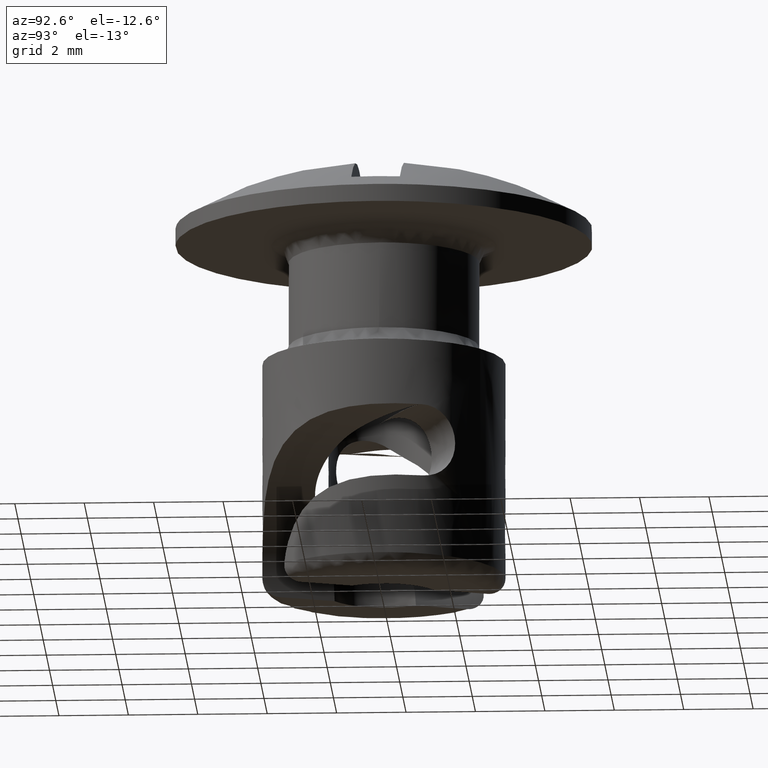
[diagram: clean part render]
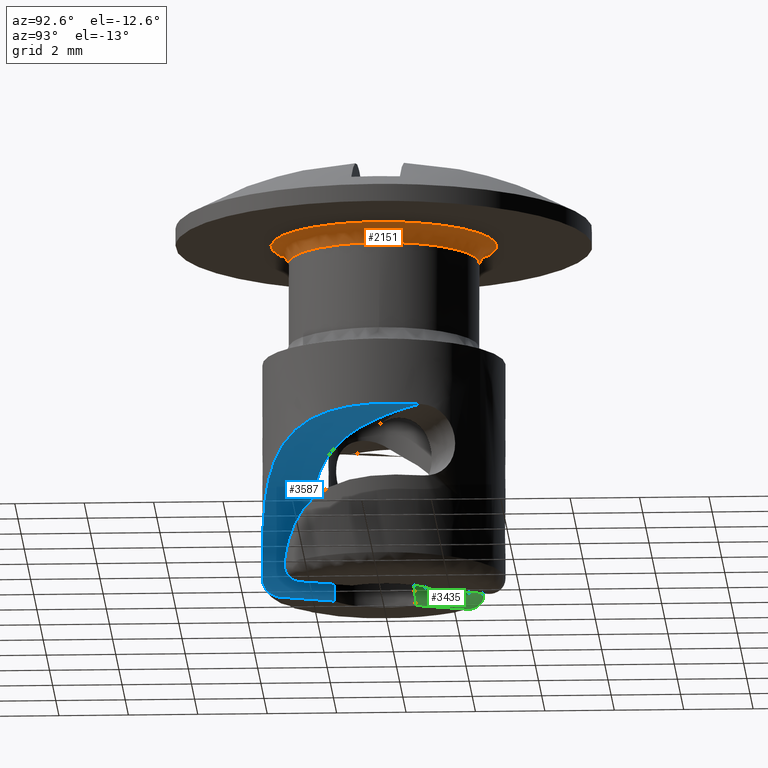
[diagram: same view with three faces highlighted in distinct colors, each labeled with its STEP entity id]
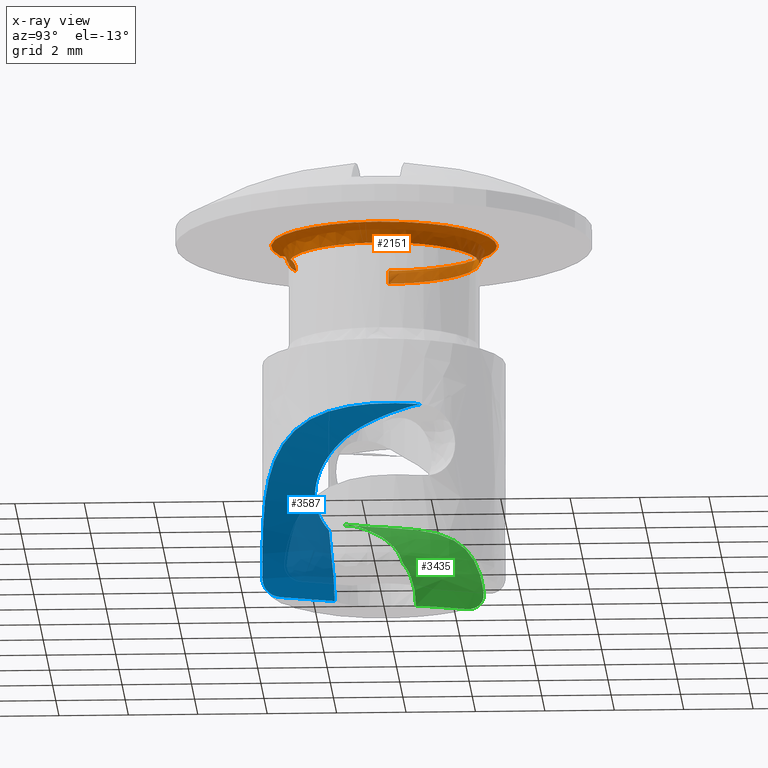
[diagram: x-ray of the same camera — body ghosted, the three highlighted faces saturated]
A machine part, auxiliary view with three faces highlighted in distinct colors.
The next image is the same camera in x-ray (body ghosted, the three faces saturated) — at least one of them is partly hidden behind the body in this view.
Their STEP definitions:

[orange] entity #2151 — the highlighted face is a freeform B-spline surface patch.
#547=CARTESIAN_POINT('',(1.517825623290041,-2.293186729702250,-0.499999999999945));
#548=VERTEX_POINT('',#547);
#554=CARTESIAN_POINT('',(-0.971580408316190,-2.572650677837188,-0.499999999988424));
#555=VERTEX_POINT('',#554);
#556=CARTESIAN_POINT('',(1.517825623290041,-2.293186729702250,-0.499999999999945));
#557=CARTESIAN_POINT('',(0.827655347255862,-2.750000000000000,-0.499999999999945));
#558=CARTESIAN_POINT('',(0.0,-2.750000000000000,-0.499999999999945));
#559=CARTESIAN_POINT('',(-0.501976606129240,-2.750000000000000,-0.499999999999945));
#560=CARTESIAN_POINT('',(-0.971580408316190,-2.572650677837188,-0.499999999988424));
#568=(BOUNDED_CURVE()B_SPLINE_CURVE(2,(#556,#557,#558,#559,#560),.UNSPECIFIED.,.F.,.U.)B_SPLINE_CURVE_WITH_KNOTS((3,2,3),(0.155387387567026,0.250000000000000,0.310000000000112),.UNSPECIFIED.)CURVE()GEOMETRIC_REPRESENTATION_ITEM()RATIONAL_B_SPLINE_CURVE((0.862207971158005,0.889154429616626,1.0,0.929705627484640,0.893152553776716))REPRESENTATION_ITEM(''));
#569=EDGE_CURVE('',#548,#555,#568,.T.);
#571=CARTESIAN_POINT('',(-2.749999999999999,1.083418E-016,-0.499999999987723));
#572=VERTEX_POINT('',#571);
#586=CARTESIAN_POINT('',(-1.384189125902121,2.376240826123024,-0.499999999998284));
#587=VERTEX_POINT('',#586);
#588=CARTESIAN_POINT('',(-2.749999999999999,1.083418E-016,-0.499999999987723));
#589=CARTESIAN_POINT('',(-2.750000000000000,1.580639877502741,-0.499999999994748));
#590=CARTESIAN_POINT('',(-1.384189125902121,2.376240826123024,-0.499999999998284));
#598=(BOUNDED_CURVE()B_SPLINE_CURVE(2,(#588,#589,#590),.UNSPECIFIED.,.F.,.U.)B_SPLINE_CURVE_WITH_KNOTS((3,3),(0.500000000000000,0.664136898729710),.UNSPECIFIED.)CURVE()GEOMETRIC_REPRESENTATION_ITEM()RATIONAL_B_SPLINE_CURVE((1.0,0.807701661619990,0.867909346380550))REPRESENTATION_ITEM(''));
#599=EDGE_CURVE('',#572,#587,#598,.T.);
#645=CARTESIAN_POINT('',(2.750000000000000,0.0,-0.499999999999945));
#646=VERTEX_POINT('',#645);
#647=CARTESIAN_POINT('',(-1.384189125902121,2.376240826123024,-0.499999999998284));
#648=CARTESIAN_POINT('',(-0.742555471668955,2.750000000000000,-0.499999999999945));
#649=CARTESIAN_POINT('',(0.0,2.750000000000000,-0.499999999999945));
#650=CARTESIAN_POINT('',(2.750000000000000,2.750000000000000,-0.499999999999945));
#651=CARTESIAN_POINT('',(2.750000000000000,0.0,-0.499999999999945));
#659=(BOUNDED_CURVE()B_SPLINE_CURVE(2,(#647,#648,#649,#650,#651),.UNSPECIFIED.,.F.,.U.)B_SPLINE_CURVE_WITH_KNOTS((3,2,3),(0.664136898729711,0.750000000000000,1.0),.UNSPECIFIED.)CURVE()GEOMETRIC_REPRESENTATION_ITEM()RATIONAL_B_SPLINE_CURVE((0.867909346380550,0.899405119566558,1.0,0.707106781186548,1.0))REPRESENTATION_ITEM(''));
#660=EDGE_CURVE('',#587,#646,#659,.T.);
#662=CARTESIAN_POINT('',(2.750000000000000,0.0,-0.499999999999945));
#663=CARTESIAN_POINT('',(2.750000000000001,-1.477629140297486,-0.499999999999945));
#664=CARTESIAN_POINT('',(1.517825623290041,-2.293186729702250,-0.499999999999945));
#672=(BOUNDED_CURVE()B_SPLINE_CURVE(2,(#662,#663,#664),.UNSPECIFIED.,.F.,.U.)B_SPLINE_CURVE_WITH_KNOTS((3,3),(0.0,0.155387387567026),.UNSPECIFIED.)CURVE()GEOMETRIC_REPRESENTATION_ITEM()RATIONAL_B_SPLINE_CURVE((1.0,0.817952351569921,0.862207971158005))REPRESENTATION_ITEM(''));
#673=EDGE_CURVE('',#646,#548,#672,.T.);
#2048=CARTESIAN_POINT('',(-1.160482248945217,-3.072844428331191,-0.001203826731089));
#2049=CARTESIAN_POINT('',(-0.599574606292951,-3.284675315893946,-0.001203826731089));
#2050=CARTESIAN_POINT('',(-4.022434E-016,-3.284675315893946,-0.001203826731089));
#2051=CARTESIAN_POINT('',(3.284675315893945,-3.284675315893947,-0.001203826731089));
#2052=CARTESIAN_POINT('',(3.284675315893946,-6.033651E-016,-0.001203826731089));
#2053=CARTESIAN_POINT('',(3.284675315893947,3.284675315893945,-0.001203826731089));
#2054=CARTESIAN_POINT('',(8.044869E-016,3.284675315893946,-0.001203826731089));
#2055=CARTESIAN_POINT('',(-3.284675315893945,3.284675315893947,-0.001203826731089));
#2056=CARTESIAN_POINT('',(-3.284675315893946,1.005609E-015,-0.001203826731089));
#2057=CARTESIAN_POINT('',(-0.957847686376818,-2.536287762219682,0.038667875892163));
#2058=CARTESIAN_POINT('',(-0.494881459815510,-2.711130355236122,0.038667875892163));
#2059=CARTESIAN_POINT('',(-3.320067E-016,-2.711130355236123,0.038667875892163));
#2060=CARTESIAN_POINT('',(2.711130355236122,-2.711130355236122,0.038667875892163));
#2061=CARTESIAN_POINT('',(2.711130355236123,-4.980101E-016,0.038667875892163));
#2062=CARTESIAN_POINT('',(2.711130355236122,2.711130355236122,0.038667875892163));
#2063=CARTESIAN_POINT('',(6.640135E-016,2.711130355236123,0.038667875892163));
#2064=CARTESIAN_POINT('',(-2.711130355236122,2.711130355236122,0.038667875892163));
#2065=CARTESIAN_POINT('',(-2.711130355236123,8.300169E-016,0.038667875892163));
#2066=CARTESIAN_POINT('',(-0.972010322969988,-2.573789050141456,-0.534862112595797));
#2067=CARTESIAN_POINT('',(-0.502198725777258,-2.751216847612758,-0.534862112595797));
#2068=CARTESIAN_POINT('',(-3.369158E-016,-2.751216847612757,-0.534862112595797));
#2069=CARTESIAN_POINT('',(2.751216847612756,-2.751216847612757,-0.534862112595797));
#2070=CARTESIAN_POINT('',(2.751216847612757,-5.053736E-016,-0.534862112595797));
#2071=CARTESIAN_POINT('',(2.751216847612757,2.751216847612756,-0.534862112595797));
#2072=CARTESIAN_POINT('',(6.738315E-016,2.751216847612757,-0.534862112595797));
#2073=CARTESIAN_POINT('',(-2.751216847612756,2.751216847612757,-0.534862112595797));
#2074=CARTESIAN_POINT('',(-2.751216847612757,8.422894E-016,-0.534862112595797));
#2082=(BOUNDED_SURFACE()B_SPLINE_SURFACE(2,2,((#2048,#2057,#2066),(#2049,#2058,#2067),(#2050,#2059,#2068),(#2051,#2060,#2069),(#2052,#2061,#2070),(#2053,#2062,#2071),(#2054,#2063,#2072),(#2055,#2064,#2073),(#2056,#2065,#2074)),.UNSPECIFIED.,.F.,.F.,.U.)B_SPLINE_SURFACE_WITH_KNOTS((3,2,2,2,3),(3,3),(0.0,1.306134781281988,6.748363036623597,12.190591291965211,17.632819547306820),(0.0,0.911185222123488),.UNSPECIFIED.)GEOMETRIC_REPRESENTATION_ITEM()RATIONAL_B_SPLINE_SURFACE(((0.812829742495508,0.531919635418494,0.808327346992212),(0.846095532716660,0.553688926182902,0.841408872617134),(0.910068206218876,0.595552946883686,0.905027191126598),(0.643515399959645,0.421119527297086,0.639950864003831),(0.910068206218876,0.595552946883686,0.905027191126598),(0.643515399959645,0.421119527297086,0.639950864003831),(0.910068206218876,0.595552946883686,0.905027191126598),(0.643515399959645,0.421119527297086,0.639950864003831),(0.910068206218876,0.595552946883686,0.905027191126598)))REPRESENTATION_ITEM('')SURFACE());
#2083=ORIENTED_EDGE('',*,*,#673,.F.);
#2084=ORIENTED_EDGE('',*,*,#660,.F.);
#2085=ORIENTED_EDGE('',*,*,#599,.F.);
#2086=CARTESIAN_POINT('',(-3.249999999997137,8.589394E-018,1.369246E-014));
#2087=VERTEX_POINT('',#2086);
#2088=CARTESIAN_POINT('',(-3.249999999997137,8.589394E-018,1.369246E-014));
#2089=CARTESIAN_POINT('',(-2.750000000024443,1.771780E-016,-1.139426E-011));
#2090=CARTESIAN_POINT('',(-2.749999999999999,1.083418E-016,-0.499999999987723));
#2098=(BOUNDED_CURVE()B_SPLINE_CURVE(2,(#2088,#2089,#2090),.UNSPECIFIED.,.F.,.U.)B_SPLINE_CURVE_WITH_KNOTS((3,3),(-1.726807299490202,-0.285995334094694),.UNSPECIFIED.)CURVE()GEOMETRIC_REPRESENTATION_ITEM()RATIONAL_B_SPLINE_CURVE((0.882788776210587,0.622603437752404,0.878205639036842))REPRESENTATION_ITEM(''));
#2099=EDGE_CURVE('',#2087,#572,#2098,.T.);
#2100=ORIENTED_EDGE('',*,*,#2099,.F.);
#2101=CARTESIAN_POINT('',(3.250000000000000,0.0,0.0));
#2102=VERTEX_POINT('',#2101);
#2103=CARTESIAN_POINT('',(3.250000000000000,0.0,0.0));
#2104=CARTESIAN_POINT('',(3.250000000000000,3.250000000000000,0.0));
#2105=CARTESIAN_POINT('',(0.0,3.250000000000000,0.0));
#2106=CARTESIAN_POINT('',(-3.250000000000000,3.250000000000000,0.0));
#2107=CARTESIAN_POINT('',(-3.249999999997137,8.589394E-018,1.369246E-014));
#2115=(BOUNDED_CURVE()B_SPLINE_CURVE(2,(#2103,#2104,#2105,#2106,#2107),.UNSPECIFIED.,.F.,.U.)B_SPLINE_CURVE_WITH_KNOTS((3,2,3),(0.0,0.250000000000000,0.500000000000000),.UNSPECIFIED.)CURVE()GEOMETRIC_REPRESENTATION_ITEM()RATIONAL_B_SPLINE_CURVE((1.0,0.707106781186547,1.0,0.707106781186547,1.0))REPRESENTATION_ITEM(''));
#2116=EDGE_CURVE('',#2102,#2087,#2115,.T.);
#2117=ORIENTED_EDGE('',*,*,#2116,.F.);
#2118=CARTESIAN_POINT('',(-1.148231391575787,-3.040405346307002,2.737838E-014));
#2119=VERTEX_POINT('',#2118);
#2120=CARTESIAN_POINT('',(-1.148231391575787,-3.040405346307002,2.737838E-014));
#2121=CARTESIAN_POINT('',(-0.593245079985838,-3.250000000000000,0.0));
#2122=CARTESIAN_POINT('',(0.0,-3.250000000000000,0.0));
#2123=CARTESIAN_POINT('',(3.250000000000000,-3.250000000000000,0.0));
#2124=CARTESIAN_POINT('',(3.250000000000000,0.0,0.0));
#2132=(BOUNDED_CURVE()B_SPLINE_CURVE(2,(#2120,#2121,#2122,#2123,#2124),.UNSPECIFIED.,.F.,.U.)B_SPLINE_CURVE_WITH_KNOTS((3,2,3),(0.689999999998485,0.750000000000000,1.0),.UNSPECIFIED.)CURVE()GEOMETRIC_REPRESENTATION_ITEM()RATIONAL_B_SPLINE_CURVE((0.893152553775006,0.929705627482996,1.0,0.707106781186547,1.0))REPRESENTATION_ITEM(''));
#2133=EDGE_CURVE('',#2119,#2102,#2132,.T.);
#2134=ORIENTED_EDGE('',*,*,#2133,.F.);
#2135=CARTESIAN_POINT('',(-1.148231391575787,-3.040405346307002,2.737838E-014));
#2136=CARTESIAN_POINT('',(-0.971580408323416,-2.572650677859089,-4.761676E-010));
#2137=CARTESIAN_POINT('',(-0.971580408316190,-2.572650677837187,-0.499999999988424));
#2145=(BOUNDED_CURVE()B_SPLINE_CURVE(2,(#2135,#2136,#2137),.UNSPECIFIED.,.F.,.U.)B_SPLINE_CURVE_WITH_KNOTS((3,3),(-1.726807298540704,-0.285995334091847),.UNSPECIFIED.)CURVE()GEOMETRIC_REPRESENTATION_ITEM()RATIONAL_B_SPLINE_CURVE((0.788465049611743,0.556079850568793,0.784371609247891))REPRESENTATION_ITEM(''));
#2146=EDGE_CURVE('',#2119,#555,#2145,.T.);
#2147=ORIENTED_EDGE('',*,*,#2146,.T.);
#2148=ORIENTED_EDGE('',*,*,#569,.F.);
#2149=EDGE_LOOP('',(#2083,#2084,#2085,#2100,#2117,#2134,#2147,#2148));
#2150=FACE_OUTER_BOUND('',#2149,.T.);
#2151=ADVANCED_FACE('',(#2150),#2082,.F.);

[blue] entity #3587 — the highlighted face is a freeform B-spline surface patch.
#88=CARTESIAN_POINT('',(0.137757022448153,-3.497287949649875,-9.799999999999999));
#89=VERTEX_POINT('',#88);
#103=CARTESIAN_POINT('',(3.270921944318185,1.243027475562352,-5.400044604692890));
#104=VERTEX_POINT('',#103);
#105=CARTESIAN_POINT('',(3.270921944318185,1.243027475562352,-5.400044604692890));
#106=CARTESIAN_POINT('',(3.337428524366804,1.067785125365376,-5.400081035622704));
#107=CARTESIAN_POINT('',(3.389077508768006,0.889546251571947,-5.400817230837527));
#108=CARTESIAN_POINT('',(3.463836248487102,0.527322468759356,-5.404459444765637));
#109=CARTESIAN_POINT('',(3.486944652731964,0.343337197643135,-5.407358008335470));
#110=CARTESIAN_POINT('',(3.497343891202687,0.109651506955560,-5.413887701239980));
#111=CARTESIAN_POINT('',(3.498487321264518,0.062751030427808,-5.415344049122055));
#112=CARTESIAN_POINT('',(3.498896758835796,-0.030558936478385,-5.418581372367856));
#113=CARTESIAN_POINT('',(3.498168693204514,-0.077075848872448,-5.420365162795740));
#114=CARTESIAN_POINT('',(3.493230484071851,-0.216212885647622,-5.426287710037986));
#115=CARTESIAN_POINT('',(3.486270303458540,-0.308420046391675,-5.430994888138319));
#116=CARTESIAN_POINT('',(3.454588059182040,-0.583365650327476,-5.448093109595621));
#117=CARTESIAN_POINT('',(3.419124156154236,-0.764440744708545,-5.463399531518586));
#118=CARTESIAN_POINT('',(3.356613484029639,-0.987748349892645,-5.490521972158057));
#119=CARTESIAN_POINT('',(3.343159768619089,-1.032369789805334,-5.496367366326092));
#120=CARTESIAN_POINT('',(3.314607546158963,-1.120666867912481,-5.508874455932501));
#121=CARTESIAN_POINT('',(3.269355497882446,-1.251612368960199,-5.528840667469681));
#122=CARTESIAN_POINT('',(3.217066048576097,-1.378103675207626,-5.552705097294906));
#123=CARTESIAN_POINT('',(3.103592574227444,-1.625186658399358,-5.606450887842163));
#124=CARTESIAN_POINT('',(3.016112354655570,-1.782066931734708,-5.650261683792408));
#125=CARTESIAN_POINT('',(2.868438751313074,-2.005304417032259,-5.731830710992950));
#126=CARTESIAN_POINT('',(2.816266059322724,-2.077897415131813,-5.761805116992512));
#127=CARTESIAN_POINT('',(2.708973710333107,-2.216025305863624,-5.826346215079234));
#128=CARTESIAN_POINT('',(2.653629544564001,-2.281939777183316,-5.861028155068783));
#129=CARTESIAN_POINT('',(2.483284798684816,-2.470695984313708,-5.972736617806401));
#130=CARTESIAN_POINT('',(2.363982542788617,-2.584571174964870,-6.057409132917961));
#131=CARTESIAN_POINT('',(2.209966372633149,-2.713079800879704,-6.177612147125156));
#132=CARTESIAN_POINT('',(2.178869134984441,-2.738122721692637,-6.202413966190091));
#133=CARTESIAN_POINT('',(2.116787784382817,-2.786429290439684,-6.253046256317140));
#134=CARTESIAN_POINT('',(2.023659820090877,-2.856373356785835,-6.330669665347478));
#135=CARTESIAN_POINT('',(1.930758473270878,-2.919160838695215,-6.413316105045489));
#136=CARTESIAN_POINT('',(1.745854746306177,-3.036091316036991,-6.585339498652041));
#137=CARTESIAN_POINT('',(1.623726894034127,-3.102572148014052,-6.709044526735073));
#138=CARTESIAN_POINT('',(1.385070576196898,-3.216327764734752,-6.974643649284850));
#139=CARTESIAN_POINT('',(1.271098997556564,-3.262433903975237,-7.113672311535568));
#140=CARTESIAN_POINT('',(1.055195950018211,-3.338621666939527,-7.403831943829860));
#141=CARTESIAN_POINT('',(0.953256632940966,-3.368675382879683,-7.554963920986750));
#142=CARTESIAN_POINT('',(0.810563228651727,-3.404831464730671,-7.790846652546750));
#143=CARTESIAN_POINT('',(0.764704169255701,-3.415388297550936,-7.871008787853918));
#144=CARTESIAN_POINT('',(0.676639781496962,-3.433960333682570,-8.034467267459016));
#145=CARTESIAN_POINT('',(0.634502596955019,-3.441956693920404,-8.117672769338926));
#146=CARTESIAN_POINT('',(0.515276580374612,-3.462572881493416,-8.369111536494753));
#147=CARTESIAN_POINT('',(0.444836072192219,-3.471963906991542,-8.540096508131645));
#148=CARTESIAN_POINT('',(0.322863523102436,-3.485484875808227,-8.888919231465820));
#149=CARTESIAN_POINT('',(0.271330521898766,-3.489610233367626,-9.066756850704293));
#150=CARTESIAN_POINT('',(0.209273003390313,-3.493736914069842,-9.338940440315827));
#151=CARTESIAN_POINT('',(0.191099198159951,-3.494763710180998,-9.430801697463467));
#152=CARTESIAN_POINT('',(0.160292957893944,-3.496337413987351,-9.615014204358049));
#153=CARTESIAN_POINT('',(0.147640504235540,-3.496886741682631,-9.707377773324200));
#154=CARTESIAN_POINT('',(0.137757022448153,-3.497287949649875,-9.799999999999999));
#155=B_SPLINE_CURVE_WITH_KNOTS('',3,(#105,#106,#107,#108,#109,#110,#111,#112,#113,#114,#115,#116,#117,#118,#119,#120,#121,#122,#123,#124,#125,#126,#127,#128,#129,#130,#131,#132,#133,#134,#135,#136,#137,#138,#139,#140,#141,#142,#143,#144,#145,#146,#147,#148,#149,#150,#151,#152,#153,#154),.UNSPECIFIED.,.F.,.U.,(4,2,2,2,2,2,2,2,1,2,2,2,2,2,2,1,2,2,2,2,2,2,2,2,2,4),(0.0,0.062500000000000,0.125000000000000,0.140625000000000,0.156249999999999,0.187499999999999,0.249999999999999,0.265624999999999,0.281249999999999,0.312499999999999,0.374999999999999,0.406249999999999,0.437499999999999,0.499999999999999,0.515624999999999,0.531249999999999,0.562499999999999,0.624999999999999,0.687499999999999,0.749999999999999,0.781249999999999,0.812499999999999,0.874999999999999,0.937500000000000,0.968750000000000,1.0),.UNSPECIFIED.);
#156=EDGE_CURVE('',#104,#89,#155,.T.);
#1724=CARTESIAN_POINT('',(-0.179083579843718,-1.589946247968895,-8.325410358870839));
#1725=VERTEX_POINT('',#1724);
#1739=CARTESIAN_POINT('',(-0.674474964545786,-1.450890596220460,-10.300003499999900));
#1740=VERTEX_POINT('',#1739);
#1741=CARTESIAN_POINT('',(-0.674474964545786,-1.450890596220460,-10.300003499999900));
#1742=CARTESIAN_POINT('',(-0.674770387723053,-1.450753262956460,-10.126536362449009));
#1743=CARTESIAN_POINT('',(-0.663024219073830,-1.456369396511732,-9.955292259845601));
#1744=CARTESIAN_POINT('',(-0.617647508472461,-1.476185791242738,-9.616730463390804));
#1745=CARTESIAN_POINT('',(-0.584048927814610,-1.490305285289619,-9.449402890358989));
#1746=CARTESIAN_POINT('',(-0.519000840261962,-1.513660753870350,-9.200823128795918));
#1747=CARTESIAN_POINT('',(-0.494805480543778,-1.521816999136457,-9.118159823569746));
#1748=CARTESIAN_POINT('',(-0.442104854921236,-1.537954075952820,-8.954605728653636));
#1749=CARTESIAN_POINT('',(-0.413658834899454,-1.545918713889040,-8.873847724270970));
#1750=CARTESIAN_POINT('',(-0.322557715240966,-1.568397181863725,-8.634334019467927));
#1751=CARTESIAN_POINT('',(-0.254170569411902,-1.581488825988281,-8.478323239347594));
#1752=CARTESIAN_POINT('',(-0.179083579843718,-1.589946247968895,-8.325410358870839));
#1753=B_SPLINE_CURVE_WITH_KNOTS('',3,(#1741,#1742,#1743,#1744,#1745,#1746,#1747,#1748,#1749,#1750,#1751,#1752),.UNSPECIFIED.,.F.,.U.,(4,2,2,2,2,4),(0.0,0.250000000000000,0.500000000000000,0.625000000000000,0.750000000000000,1.0),.UNSPECIFIED.);
#1754=EDGE_CURVE('',#1740,#1725,#1753,.T.);
#2539=CARTESIAN_POINT('',(-0.179083579843718,-1.589946247968895,-8.325410358870839));
#2540=CARTESIAN_POINT('',(-0.144642412572911,-1.628435356946048,-8.284379672191578));
#2541=CARTESIAN_POINT('',(-0.076717841908854,-1.704343243051035,-8.203459308638669));
#2542=CARTESIAN_POINT('',(0.028769617276927,-1.796625491289338,-8.070165866816813));
#2543=CARTESIAN_POINT('',(0.135448860005197,-1.869875517568198,-7.931334618524419));
#2544=CARTESIAN_POINT('',(0.244291493524404,-1.922534277500573,-7.786601235937954));
#2545=CARTESIAN_POINT('',(0.355855240485262,-1.954640576618800,-7.636922602072037));
#2546=CARTESIAN_POINT('',(0.470811513596490,-1.965851519060180,-7.483017876179785));
#2547=CARTESIAN_POINT('',(0.589804249761189,-1.955965442336128,-7.325767874812152));
#2548=CARTESIAN_POINT('',(0.713485786887047,-1.924775497343042,-7.166099383740910));
#2549=CARTESIAN_POINT('',(0.842483755112992,-1.872083363743707,-7.005024104885834));
#2550=CARTESIAN_POINT('',(0.977443739221252,-1.797741490745635,-6.843616731306216));
#2551=CARTESIAN_POINT('',(1.212475904306101,-1.637589632415540,-6.576755581923483));
#2552=CARTESIAN_POINT('',(1.553123797832915,-1.331231288134770,-6.237050797339451));
#2553=CARTESIAN_POINT('',(1.931647946647941,-0.888363621665048,-5.937746061979920));
#2554=CARTESIAN_POINT('',(2.277704833955764,-0.347986025154689,-5.705925021501974));
#2555=CARTESIAN_POINT('',(2.550619082846958,0.100736993673065,-5.570596775057260));
#2556=CARTESIAN_POINT('',(2.797266649058546,0.495386997486872,-5.486677252694931));
#2557=CARTESIAN_POINT('',(2.926951585970761,0.690935152990403,-5.453593222472556));
#2558=CARTESIAN_POINT('',(3.025438444368592,0.832536862045166,-5.433597290171034));
#2559=CARTESIAN_POINT('',(3.093676683228233,0.928628533185757,-5.421884965610621));
#2560=CARTESIAN_POINT('',(3.159973885887538,1.024016313025695,-5.412540277235172));
#2561=CARTESIAN_POINT('',(3.210724903286257,1.101791849206664,-5.406560135518642));
#2562=CARTESIAN_POINT('',(3.244762282857396,1.163167065961199,-5.402978834991891));
#2563=CARTESIAN_POINT('',(3.268074806775244,1.207640446990309,-5.400837747901147));
#2564=CARTESIAN_POINT('',(3.270154911812794,1.233494040392967,-5.400258281276119));
#2565=CARTESIAN_POINT('',(3.270921944318185,1.243027475562352,-5.400044604692890));
#2566=B_SPLINE_CURVE_WITH_KNOTS('',3,(#2539,#2540,#2541,#2542,#2543,#2544,#2545,#2546,#2547,#2548,#2549,#2550,#2551,#2552,#2553,#2554,#2555,#2556,#2557,#2558,#2559,#2560,#2561,#2562,#2563,#2564,#2565),.UNSPECIFIED.,.F.,.U.,(4,1,1,1,1,1,1,1,1,1,1,1,1,1,1,1,1,1,1,1,1,1,1,1,4),(0.0,0.032006077652434,0.063122108089084,0.093677217300743,0.124018785930103,0.154501491378811,0.185475158159713,0.217273406207348,0.250204799059170,0.284547365283776,0.320546446855920,0.358415197987211,0.473742932380571,0.595321764649958,0.674008287268148,0.804443456525214,0.858111399730060,0.903571445295770,0.919453837082729,0.942425330615547,0.961063173607924,0.976075793522480,0.987493514582801,0.995388270943045,1.0),.UNSPECIFIED.);
#2567=EDGE_CURVE('',#1725,#104,#2566,.T.);
#3538=CARTESIAN_POINT('',(-1.100070532888569,-0.341499949952273,-10.342763243587250));
#3539=CARTESIAN_POINT('',(0.212297205446197,-3.760333955326978,-10.342763243587250));
#3540=CARTESIAN_POINT('',(-1.146776931811231,-0.359428861102544,-5.356738006580969));
#3541=CARTESIAN_POINT('',(0.165590806523536,-3.778262866477249,-5.356738006580969));
#3542=CARTESIAN_POINT('',(3.508184670869815,1.427443920945895,-5.393734438279697));
#3543=CARTESIAN_POINT('',(4.820552409204582,-1.991390084428810,-5.393734438279697));
#3551=(BOUNDED_SURFACE()B_SPLINE_SURFACE(1,2,((#3538,#3540,#3542),(#3539,#3541,#3543)),.UNSPECIFIED.,.F.,.F.,.U.)B_SPLINE_SURFACE_WITH_KNOTS((2,2),(3,3),(0.0,3.662067044297299),(0.0,8.218962114464375),.UNSPECIFIED.)GEOMETRIC_REPRESENTATION_ITEM()RATIONAL_B_SPLINE_SURFACE(((1.0,0.700909264299851,1.0),(1.0,0.700909264299851,1.0)))REPRESENTATION_ITEM('')SURFACE());
#3552=ORIENTED_EDGE('',*,*,#1754,.T.);
#3553=ORIENTED_EDGE('',*,*,#2567,.T.);
#3554=ORIENTED_EDGE('',*,*,#156,.T.);
#3555=CARTESIAN_POINT('',(-0.080239420365395,-2.998926747257910,-10.300000000001200));
#3556=VERTEX_POINT('',#3555);
#3557=CARTESIAN_POINT('',(0.137757022448153,-3.497287949649875,-9.799999999999999));
#3558=CARTESIAN_POINT('',(0.134102867682885,-3.497431885604611,-9.834202884381083));
#3559=CARTESIAN_POINT('',(0.129589844882187,-3.494129095371486,-9.867712395802634));
#3560=CARTESIAN_POINT('',(0.118891358146238,-3.481011714675264,-9.933413832473942));
#3561=CARTESIAN_POINT('',(0.112618220102263,-3.471019069305558,-9.965954372819560));
#3562=CARTESIAN_POINT('',(0.098681584985865,-3.445126832580369,-10.027432733812979));
#3563=CARTESIAN_POINT('',(0.091032741933449,-3.429306977811069,-10.056446125955979));
#3564=CARTESIAN_POINT('',(0.078429111792634,-3.401372692172004,-10.097405823558670));
#3565=CARTESIAN_POINT('',(0.074012932576578,-3.391295789858081,-10.110693899675381));
#3566=CARTESIAN_POINT('',(0.064932056200170,-3.370087816938953,-10.135927491983180));
#3567=CARTESIAN_POINT('',(0.060261712047506,-3.358947556465784,-10.147904057013561));
#3568=CARTESIAN_POINT('',(0.045839360085444,-3.323983519515394,-10.181974645052421));
#3569=CARTESIAN_POINT('',(0.035672044523438,-3.298610745217407,-10.202237473268330));
#3570=CARTESIAN_POINT('',(0.014085067352249,-3.243862334759291,-10.237713504289660));
#3571=CARTESIAN_POINT('',(0.002982176416607,-3.215294919215811,-10.252409762534811));
#3572=CARTESIAN_POINT('',(-0.019939439519148,-3.155978028656512,-10.276104987689299));
#3573=CARTESIAN_POINT('',(-0.031871956698843,-3.124929721468313,-10.285146280699310));
#3574=CARTESIAN_POINT('',(-0.055962146940489,-3.062189559215263,-10.297071961601780));
#3575=CARTESIAN_POINT('',(-0.068065354128633,-3.030641279068961,-10.299999999890140));
#3576=CARTESIAN_POINT('',(-0.080239420365395,-2.998926747257910,-10.300000000001200));
#3577=B_SPLINE_CURVE_WITH_KNOTS('',3,(#3557,#3558,#3559,#3560,#3561,#3562,#3563,#3564,#3565,#3566,#3567,#3568,#3569,#3570,#3571,#3572,#3573,#3574,#3575,#3576),.UNSPECIFIED.,.F.,.U.,(4,2,2,2,2,2,2,2,2,4),(0.0,0.124999999999997,0.249999999999995,0.374999999999992,0.437499999999993,0.499999999999995,0.624999999999996,0.749999999999997,0.874999999999999,1.0),.UNSPECIFIED.);
#3578=EDGE_CURVE('',#89,#3556,#3577,.T.);
#3579=ORIENTED_EDGE('',*,*,#3578,.T.);
#3580=CARTESIAN_POINT('',(-0.674474964545786,-1.450890596220460,-10.300003499999900));
#3581=CARTESIAN_POINT('',(-0.080239420365395,-2.998926747257910,-10.300000000001200));
#3582=QUASI_UNIFORM_CURVE('',1,(#3580,#3581),.UNSPECIFIED.,.F.,.U.);
#3583=EDGE_CURVE('',#1740,#3556,#3582,.T.);
#3584=ORIENTED_EDGE('',*,*,#3583,.F.);
#3585=EDGE_LOOP('',(#3552,#3553,#3554,#3579,#3584));
#3586=FACE_OUTER_BOUND('',#3585,.T.);
#3587=ADVANCED_FACE('',(#3586),#3551,.F.);

[green] entity #3435 — the highlighted face is a freeform B-spline surface patch.
#380=CARTESIAN_POINT('',(-3.267531389806225,-1.254288091560722,-7.500000000000000));
#381=VERTEX_POINT('',#380);
#431=CARTESIAN_POINT('',(-2.130075441178690,2.777188977165180,-9.799999999999999));
#432=VERTEX_POINT('',#431);
#433=CARTESIAN_POINT('',(-3.267531389806225,-1.254288091560722,-7.500000000000000));
#434=CARTESIAN_POINT('',(-3.351200066216232,-1.036323791052952,-7.500000000000044));
#435=CARTESIAN_POINT('',(-3.411876098596036,-0.813716351198465,-7.501799698222497));
#436=CARTESIAN_POINT('',(-3.469779144142593,-0.473171104324589,-7.509590750812047));
#437=CARTESIAN_POINT('',(-3.483519958017155,-0.358542956976051,-7.513089139153657));
#438=CARTESIAN_POINT('',(-3.495593658910537,-0.184908245515677,-7.520512727596818));
#439=CARTESIAN_POINT('',(-3.498193610537039,-0.126571423024018,-7.523364593467159));
#440=CARTESIAN_POINT('',(-3.500467396480063,-0.010337703254665,-7.529932507442171));
#441=CARTESIAN_POINT('',(-3.500151968860371,0.047535348377563,-7.533644421552181));
#442=CARTESIAN_POINT('',(-3.491491565482520,0.335650531899596,-7.554770146873207));
#443=CARTESIAN_POINT('',(-3.462038806147583,0.562198552739759,-7.579587081551051));
#444=CARTESIAN_POINT('',(-3.398326791221308,0.839411260536738,-7.629979281074962));
#445=CARTESIAN_POINT('',(-3.384231240344400,0.894551536206345,-7.641046397853146));
#446=CARTESIAN_POINT('',(-3.353334951885737,1.004185361132903,-7.665490550371440));
#447=CARTESIAN_POINT('',(-3.336498140641878,1.058752070023987,-7.678898306786302));
#448=CARTESIAN_POINT('',(-3.282775650916062,1.219051753987411,-7.722460986405112));
#449=CARTESIAN_POINT('',(-3.242480827973742,1.322163817580828,-7.756100641474109));
#450=CARTESIAN_POINT('',(-3.154252039642119,1.520688380540448,-7.834524177655818));
#451=CARTESIAN_POINT('',(-3.106312968840856,1.616101211286692,-7.879301559850605));
#452=CARTESIAN_POINT('',(-3.029690402242631,1.753201903072399,-7.956571534828786));
#453=CARTESIAN_POINT('',(-3.003334266560195,1.797925558827767,-7.984059946297083));
#454=CARTESIAN_POINT('',(-2.950182206035340,1.883873133460230,-8.041694602299781));
#455=CARTESIAN_POINT('',(-2.923280353254247,1.925294756998291,-8.071944133469140));
#456=CARTESIAN_POINT('',(-2.842006884251569,2.045069331356823,-8.167130108498844));
#457=CARTESIAN_POINT('',(-2.787066953996152,2.118938601003213,-8.236496423317547));
#458=CARTESIAN_POINT('',(-2.705118314635135,2.221316198573555,-8.350071606089262));
#459=CARTESIAN_POINT('',(-2.677878766818028,2.254036047851170,-8.389519228272764));
#460=CARTESIAN_POINT('',(-2.623825161587785,2.316733630827290,-8.471730543256243));
#461=CARTESIAN_POINT('',(-2.596997024515527,2.346716709589787,-8.514540853397756));
#462=CARTESIAN_POINT('',(-2.466791486960239,2.487670702972415,-8.733423716998976));
#463=CARTESIAN_POINT('',(-2.373329331148084,2.574408197372855,-8.926573801845644));
#464=CARTESIAN_POINT('',(-2.258631396464550,2.674163726308037,-9.243293427839593));
#465=CARTESIAN_POINT('',(-2.225408667860056,2.701637014864013,-9.351322688575436));
#466=CARTESIAN_POINT('',(-2.169579037480645,2.746673096528702,-9.572104074964056));
#467=CARTESIAN_POINT('',(-2.146968007051269,2.764232552521520,-9.684855847126446));
#468=CARTESIAN_POINT('',(-2.130075441178690,2.777188977165180,-9.799999999999999));
#469=B_SPLINE_CURVE_WITH_KNOTS('',3,(#433,#434,#435,#436,#437,#438,#439,#440,#441,#442,#443,#444,#445,#446,#447,#448,#449,#450,#451,#452,#453,#454,#455,#456,#457,#458,#459,#460,#461,#462,#463,#464,#465,#466,#467,#468),.UNSPECIFIED.,.F.,.U.,(4,2,2,2,2,2,2,2,2,2,2,2,2,2,2,2,2,4),(0.0,0.125000000000000,0.187500000000000,0.218750000000001,0.250000000000001,0.375000000000001,0.406250000000001,0.437500000000001,0.500000000000001,0.562500000000002,0.593750000000002,0.625000000000002,0.687500000000001,0.718750000000001,0.750000000000001,0.875000000000000,0.937500000000000,1.0),.UNSPECIFIED.);
#470=EDGE_CURVE('',#381,#432,#469,.T.);
#1756=CARTESIAN_POINT('',(-1.348526415986928,0.861090300366407,-10.300006999999800));
#1757=VERTEX_POINT('',#1756);
#1773=CARTESIAN_POINT('',(-1.526738727646590,0.478611384636927,-9.020984840078810));
#1774=VERTEX_POINT('',#1773);
#1775=CARTESIAN_POINT('',(-1.348526415986928,0.861090300366407,-10.300006999999800));
#1776=CARTESIAN_POINT('',(-1.348216686177715,0.861575358471745,-10.184480622725751));
#1777=CARTESIAN_POINT('',(-1.352706740788866,0.854673385565955,-10.070561373775281));
#1778=CARTESIAN_POINT('',(-1.370351055506589,0.826087227381214,-9.845853135332622));
#1779=CARTESIAN_POINT('',(-1.383519192402286,0.804413201256987,-9.735063802794715));
#1780=CARTESIAN_POINT('',(-1.408718523392337,0.758823833558758,-9.571446975868023));
#1781=CARTESIAN_POINT('',(-1.418068942140272,0.741331173800107,-9.517092496703274));
#1782=CARTESIAN_POINT('',(-1.438063233698689,0.701758911446619,-9.410553129313239));
#1783=CARTESIAN_POINT('',(-1.448656555137786,0.679784208405556,-9.358584675034724));
#1784=CARTESIAN_POINT('',(-1.481457686288081,0.606739369666204,-9.206710950068608));
#1785=CARTESIAN_POINT('',(-1.504777674771540,0.548665693834556,-9.110794681388184));
#1786=CARTESIAN_POINT('',(-1.526738727646590,0.478611384636927,-9.020984840078810));
#1787=B_SPLINE_CURVE_WITH_KNOTS('',3,(#1775,#1776,#1777,#1778,#1779,#1780,#1781,#1782,#1783,#1784,#1785,#1786),.UNSPECIFIED.,.F.,.U.,(4,2,2,2,2,4),(0.0,0.250000000000000,0.500000000000000,0.625000000000000,0.750000000000000,1.0),.UNSPECIFIED.);
#1788=EDGE_CURVE('',#1757,#1774,#1787,.T.);
#2766=CARTESIAN_POINT('',(-3.267531389806225,-1.254288091560722,-7.500000000000000));
#2767=CARTESIAN_POINT('',(-3.237015723239105,-1.260831714648548,-7.502544372568056));
#2768=CARTESIAN_POINT('',(-3.175331702050805,-1.274058919904246,-7.507687538326985));
#2769=CARTESIAN_POINT('',(-3.078187849339142,-1.266605434980605,-7.520317754740453));
#2770=CARTESIAN_POINT('',(-2.979696522649313,-1.239282708902028,-7.537632456311075));
#2771=CARTESIAN_POINT('',(-2.879639464246487,-1.190741510987248,-7.560953897641352));
#2772=CARTESIAN_POINT('',(-2.778408498603771,-1.121993245622059,-7.591318175744574));
#2773=CARTESIAN_POINT('',(-2.676134736363118,-1.033253661608677,-7.630035458401990));
#2774=CARTESIAN_POINT('',(-2.564429718326018,-0.914207694355791,-7.682741727719093));
#2775=CARTESIAN_POINT('',(-2.449507861839227,-0.771551703684631,-7.750623310585634));
#2776=CARTESIAN_POINT('',(-2.335561846110394,-0.596058482810356,-7.836740426846540));
#2777=CARTESIAN_POINT('',(-2.224825741396955,-0.408644128240594,-7.938499586465833));
#2778=CARTESIAN_POINT('',(-2.074031670998950,-0.162628305733003,-8.099857557219366));
#2779=CARTESIAN_POINT('',(-1.905506313925919,0.102825473655994,-8.323289421480476));
#2780=CARTESIAN_POINT('',(-1.739759776454626,0.305707555370148,-8.593926240106997));
#2781=CARTESIAN_POINT('',(-1.615887664945206,0.419343768548493,-8.826276463132023));
#2782=CARTESIAN_POINT('',(-1.555835237906173,0.459276886051006,-8.957424366762597));
#2783=CARTESIAN_POINT('',(-1.526738727646590,0.478611384636927,-9.020984840078810));
#2784=B_SPLINE_CURVE_WITH_KNOTS('',3,(#2766,#2767,#2768,#2769,#2770,#2771,#2772,#2773,#2774,#2775,#2776,#2777,#2778,#2779,#2780,#2781,#2782,#2783),.UNSPECIFIED.,.F.,.U.,(4,1,1,1,1,1,1,1,1,1,1,1,1,1,1,4),(0.0,0.030140358426897,0.060925377583948,0.093792538075226,0.129931670338038,0.170243879386659,0.215380990017078,0.265808034490546,0.335931561441052,0.403939417912482,0.484382610087845,0.568116481622142,0.723456434591058,0.855189663295270,0.929696507567967,0.999746796106386),.UNSPECIFIED.);
#2785=EDGE_CURVE('',#381,#1774,#2784,.T.);
#3383=CARTESIAN_POINT('',(-0.828596291103049,-0.502175839646144,-10.422129623662361));
#3384=CARTESIAN_POINT('',(-2.124642229621386,2.874138433940523,-10.422129623662361));
#3385=CARTESIAN_POINT('',(-0.701917145938189,-0.453548259900292,-7.576061768968184));
#3386=CARTESIAN_POINT('',(-1.997963084456527,2.922766013686374,-7.576061768968184));
#3387=CARTESIAN_POINT('',(-3.360756480769414,-1.474181305834174,-7.490061432008902));
#3388=CARTESIAN_POINT('',(-4.656802419287750,1.902132967752491,-7.490061432008903));
#3396=(BOUNDED_SURFACE()B_SPLINE_SURFACE(1,2,((#3383,#3385,#3387),(#3384,#3386,#3388)),.UNSPECIFIED.,.F.,.F.,.U.)B_SPLINE_SURFACE_WITH_KNOTS((2,2),(3,3),(0.0,3.616522245026974),(0.0,4.696549779693927),.UNSPECIFIED.)GEOMETRIC_REPRESENTATION_ITEM()RATIONAL_B_SPLINE_SURFACE(((1.0,0.700909264299851,1.0),(1.0,0.700909264299851,1.0)))REPRESENTATION_ITEM('')SURFACE());
#3397=ORIENTED_EDGE('',*,*,#470,.F.);
#3398=ORIENTED_EDGE('',*,*,#2785,.T.);
#3399=ORIENTED_EDGE('',*,*,#1788,.F.);
#3400=CARTESIAN_POINT('',(-1.906978887296520,2.315908369668660,-10.300006999999800));
#3401=VERTEX_POINT('',#3400);
#3402=CARTESIAN_POINT('',(-1.348526415986928,0.861090300366407,-10.300006999999800));
#3403=CARTESIAN_POINT('',(-1.906978887296520,2.315908369668660,-10.300006999999800));
#3404=QUASI_UNIFORM_CURVE('',1,(#3402,#3403),.UNSPECIFIED.,.F.,.U.);
#3405=EDGE_CURVE('',#1757,#3401,#3404,.T.);
#3406=ORIENTED_EDGE('',*,*,#3405,.T.);
#3407=CARTESIAN_POINT('',(-2.130075441178690,2.777188977165180,-9.799999999999999));
#3408=CARTESIAN_POINT('',(-2.125248877906963,2.780890901965653,-9.832899340804437));
#3409=CARTESIAN_POINT('',(-2.119729902955227,2.781053801753919,-9.865716333681757));
#3410=CARTESIAN_POINT('',(-2.110320937446434,2.775826541301854,-9.914804443367144));
#3411=CARTESIAN_POINT('',(-2.106977078736819,2.773141069430063,-9.931211534933016));
#3412=CARTESIAN_POINT('',(-2.100041807436683,2.766040416150086,-9.963185300594157));
#3413=CARTESIAN_POINT('',(-2.092828270430341,2.757206855467804,-9.994496216401583));
#3414=CARTESIAN_POINT('',(-2.085017062095530,2.745003613596463,-10.024504294065791));
#3415=CARTESIAN_POINT('',(-2.076872109017009,2.731114848866999,-10.053852135704171));
#3416=CARTESIAN_POINT('',(-2.072609281010718,2.723277994270379,-10.068263199975460));
#3417=CARTESIAN_POINT('',(-2.059540317493366,2.697765907314253,-10.109566312355261));
#3418=CARTESIAN_POINT('',(-2.050398595498195,2.678031845807754,-10.134796694971220));
#3419=CARTESIAN_POINT('',(-2.035838023217691,2.644611688102689,-10.169322346367631));
#3420=CARTESIAN_POINT('',(-2.030815868831848,2.632764958773290,-10.180321288044240));
#3421=CARTESIAN_POINT('',(-2.020633988278143,2.608246634400360,-10.200805109014411));
#3422=CARTESIAN_POINT('',(-2.015462974297380,2.595552246454849,-10.210326475880230));
#3423=CARTESIAN_POINT('',(-1.999665425721004,2.556236964224357,-10.236814954541479));
#3424=CARTESIAN_POINT('',(-1.988693749045447,2.528235780237709,-10.251789893178850));
#3425=CARTESIAN_POINT('',(-1.966011162085466,2.469745217525324,-10.275914135017580));
#3426=CARTESIAN_POINT('',(-1.954506623200380,2.439795495012168,-10.284880573741921));
#3427=CARTESIAN_POINT('',(-1.931033005658425,2.378619179042460,-10.296940408065820));
#3428=CARTESIAN_POINT('',(-1.918946362609865,2.347084703695429,-10.300006767132579));
#3429=CARTESIAN_POINT('',(-1.906978887296520,2.315908369668660,-10.300006999999800));
#3430=B_SPLINE_CURVE_WITH_KNOTS('',3,(#3407,#3408,#3409,#3410,#3411,#3412,#3413,#3414,#3415,#3416,#3417,#3418,#3419,#3420,#3421,#3422,#3423,#3424,#3425,#3426,#3427,#3428,#3429),.UNSPECIFIED.,.F.,.U.,(4,2,2,1,2,2,2,2,2,2,2,4),(0.0,0.124999999999999,0.187500000000002,0.250000000000005,0.312500000000008,0.375000000000010,0.500000000000012,0.562500000000010,0.625000000000008,0.750000000000005,0.875000000000002,1.0),.UNSPECIFIED.);
#3431=EDGE_CURVE('',#432,#3401,#3430,.T.);
#3432=ORIENTED_EDGE('',*,*,#3431,.F.);
#3433=EDGE_LOOP('',(#3397,#3398,#3399,#3406,#3432));
#3434=FACE_OUTER_BOUND('',#3433,.T.);
#3435=ADVANCED_FACE('',(#3434),#3396,.T.);